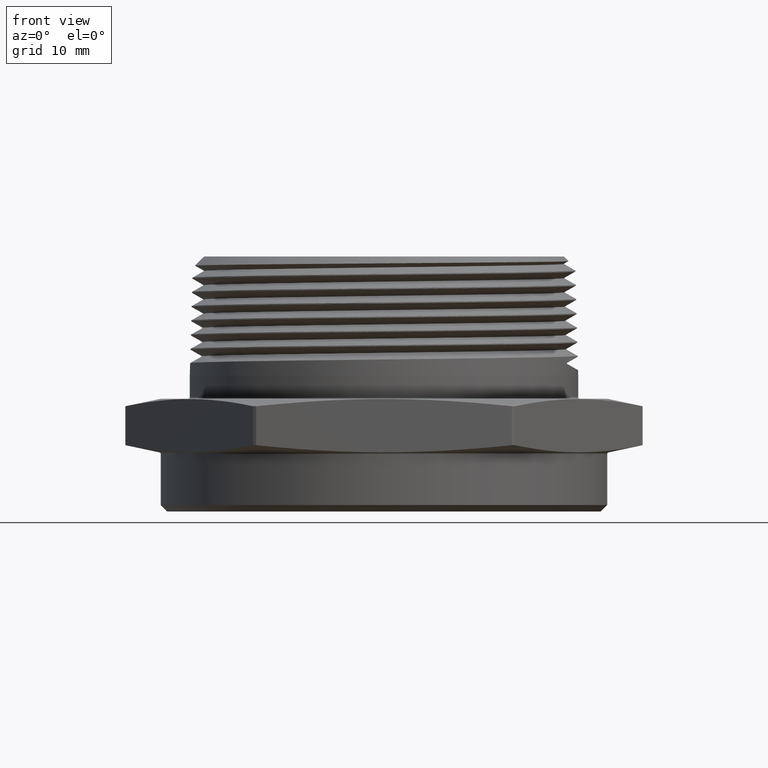
[diagram: clean part render]
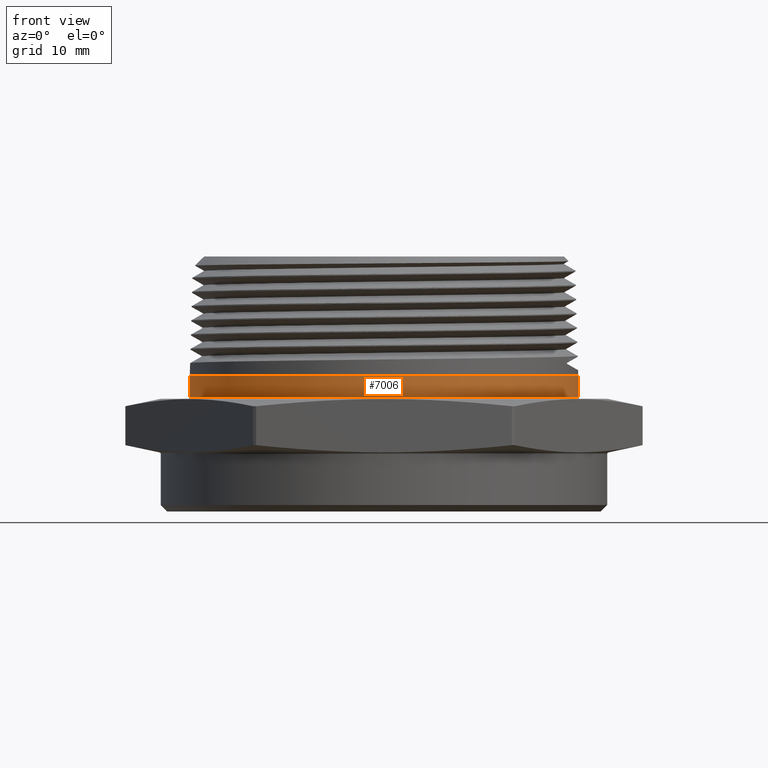
[diagram: same view with one face highlighted and labeled with its STEP entity id]
A machine part, front view. The second image highlights one B-rep face of the part: STEP entity #7006.
In plain terms, the highlighted cylindrical surface (partial cylindrical patch) has radius 30.1625 mm, axis along (-0, -0, -1).
Its self-contained STEP definition (entity closure, byte-faithful):
#422 = AXIS2_PLACEMENT_3D ( 'NONE', #7273, #7274, #7272 ) ;
#2945 = LINE ( 'NONE', #3067, #2952 ) ;
#2952 = VECTOR ( 'NONE', #3065, 39.37007874015748100 ) ;
#2953 = LINE ( 'NONE', #3071, #2955 ) ;
#2955 = VECTOR ( 'NONE', #3066, 39.37007874015748100 ) ;
#3006 = CIRCLE ( 'NONE', #3434, 1.187500000000000000 ) ;
#3065 = DIRECTION ( 'NONE',  ( -0.0000000000000000000, -0.0000000000000000000, -1.000000000000000000 ) ) ;
#3066 = DIRECTION ( 'NONE',  ( -0.0000000000000000000, -0.0000000000000000000, -1.000000000000000000 ) ) ;
#3067 = CARTESIAN_POINT ( 'NONE',  ( 1.187500000000000000, 1.454268073987482100E-016, 1.200000000000000000 ) ) ;
#3071 = CARTESIAN_POINT ( 'NONE',  ( -1.187500000000000000, 0.0000000000000000000, 1.200000000000000000 ) ) ;
#3205 = VERTEX_POINT ( 'NONE', #8001 ) ;
#3208 = VERTEX_POINT ( 'NONE', #7998 ) ;
#3277 = EDGE_CURVE ( 'NONE', #6863, #3205, #2945, .T. ) ;
#3279 = EDGE_CURVE ( 'NONE', #6874, #3208, #2953, .T. ) ;
#3322 = EDGE_LOOP ( 'NONE', ( #4771, #4772, #4773, #4774 ) ) ;
#3414 = EDGE_CURVE ( 'NONE', #6874, #6863, #3006, .T. ) ;
#3434 = AXIS2_PLACEMENT_3D ( 'NONE', #3912, #3913, #3914 ) ;
#3912 = CARTESIAN_POINT ( 'NONE',  ( 0.0000000000000000000, 0.0000000000000000000, 0.4712952533779566900 ) ) ;
#3913 = DIRECTION ( 'NONE',  ( 0.0000000000000000000, 0.0000000000000000000, 1.000000000000000000 ) ) ;
#3914 = DIRECTION ( 'NONE',  ( -1.000000000000000000, 0.0000000000000000000, 0.0000000000000000000 ) ) ;
#4771 = ORIENTED_EDGE ( 'NONE', *, *, #3277, .F. ) ;
#4772 = ORIENTED_EDGE ( 'NONE', *, *, #3414, .F. ) ;
#4773 = ORIENTED_EDGE ( 'NONE', *, *, #3279, .T. ) ;
#4774 = ORIENTED_EDGE ( 'NONE', *, *, #7051, .T. ) ;
#5423 = CARTESIAN_POINT ( 'NONE',  ( -1.187500000000000000, 0.0000000000000000000, 0.4712952533779566900 ) ) ;
#5437 = CARTESIAN_POINT ( 'NONE',  ( 1.187500000000000000, 1.454268073987482100E-016, 0.4712952533779566900 ) ) ;
#5508 = AXIS2_PLACEMENT_3D ( 'NONE', #6766, #6767, #6768 ) ;
#6766 = CARTESIAN_POINT ( 'NONE',  ( 0.0000000000000000000, 0.0000000000000000000, 0.3400000000000000800 ) ) ;
#6767 = DIRECTION ( 'NONE',  ( -0.0000000000000000000, 0.0000000000000000000, 1.000000000000000000 ) ) ;
#6768 = DIRECTION ( 'NONE',  ( 1.000000000000000000, 0.0000000000000000000, 0.0000000000000000000 ) ) ;
#6863 = VERTEX_POINT ( 'NONE', #5437 ) ;
#6874 = VERTEX_POINT ( 'NONE', #5423 ) ;
#7006 = ADVANCED_FACE ( 'NONE', ( #7170 ), #7137, .T. ) ;
#7051 = EDGE_CURVE ( 'NONE', #3208, #3205, #7243, .T. ) ;
#7137 = CYLINDRICAL_SURFACE ( 'NONE', #422, 1.187500000000000000 ) ;
#7170 = FACE_OUTER_BOUND ( 'NONE', #3322, .T. ) ;
#7243 = CIRCLE ( 'NONE', #5508, 1.187500000000000000 ) ;
#7272 = DIRECTION ( 'NONE',  ( -1.000000000000000000, 0.0000000000000000000, 0.0000000000000000000 ) ) ;
#7273 = CARTESIAN_POINT ( 'NONE',  ( 0.0000000000000000000, 0.0000000000000000000, 1.200000000000000000 ) ) ;
#7274 = DIRECTION ( 'NONE',  ( -0.0000000000000000000, -0.0000000000000000000, -1.000000000000000000 ) ) ;
#7998 = CARTESIAN_POINT ( 'NONE',  ( -1.187500000000000000, 0.0000000000000000000, 0.3400000000000000800 ) ) ;
#8001 = CARTESIAN_POINT ( 'NONE',  ( 1.187500000000000000, 1.454268073987482100E-016, 0.3400000000000000800 ) ) ;